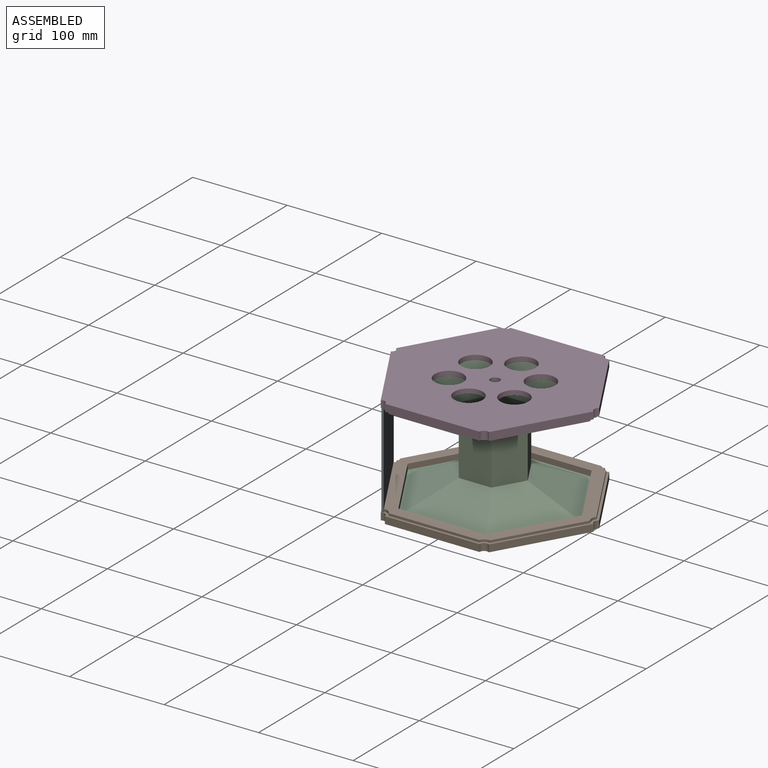
[diagram: assembled view]
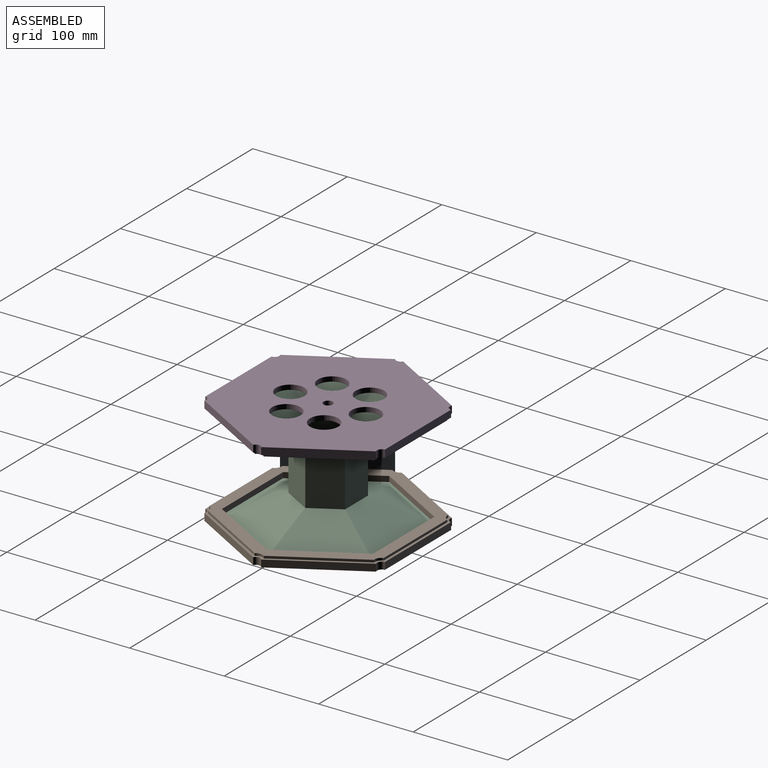
[diagram: assembled view, second angle]
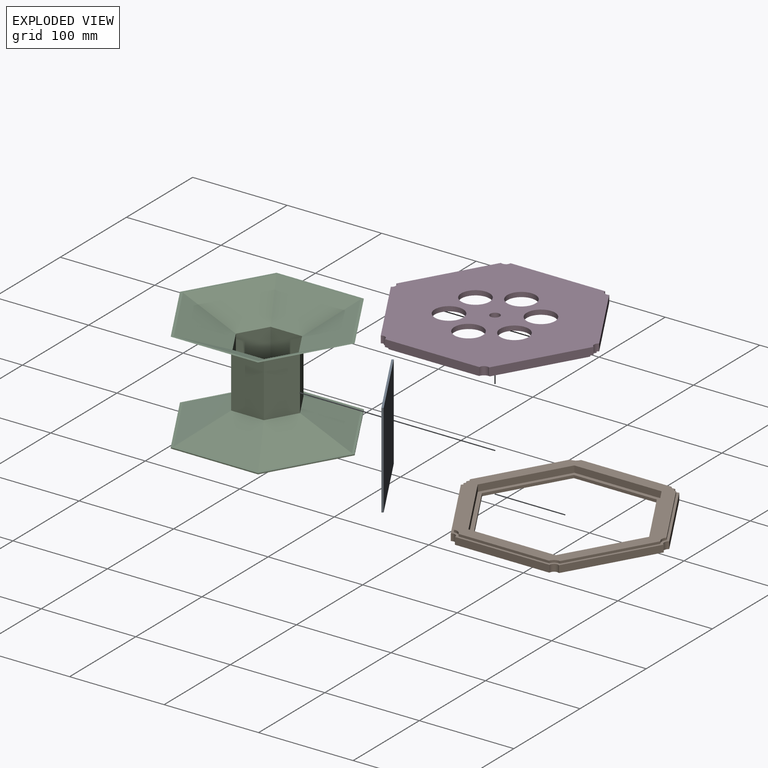
[diagram: exploded view]
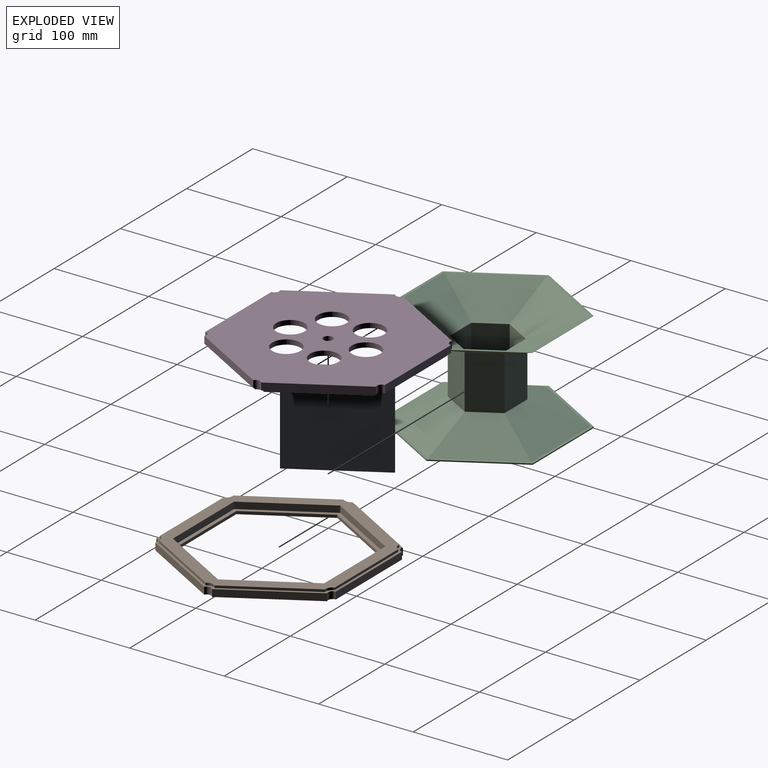
[diagram: exploded view, second angle]
ASSEMBLY  parts=4 mates=3
PART A: 6 faces, bbox 100x100x2 mm
  f0: plane 100x2mm, normal (1,0,0), area 200mm2, adj f1,f3,f4,f5
  f1: plane 100x2mm, normal (0,1,0), area 200mm2, adj f0,f2,f4,f5
  f2: plane 100x2mm, normal (-1,0,0), area 200mm2, adj f1,f3,f4,f5
  f3: plane 100x2mm, normal (0,-1,0), area 200mm2, adj f0,f2,f4,f5
  f4: plane 100x100mm, normal (0,0,1), area 10000mm2, adj f0,f1,f2,f3
  f5: plane 100x100mm, normal (0,0,-1), area 10000mm2, adj f0,f1,f2,f3
PART B: 40 faces, bbox 214.6x190x10 mm
  f0: plane 100.1x7.5mm, normal (0,1,0), area 750.7mm2, adj f6,f7,f19,f32
  f1: plane 86.69x50.05mm, normal (-0.87,0.5,0), area 750.7mm2, adj f7,f8,f19,f32
  f2: plane 86.69x50.05mm, normal (-0.87,-0.5,0), area 750.7mm2, adj f8,f9,f19,f32
  f3: plane 100.1x7.5mm, normal (0,-1,0), area 750.7mm2, adj f9,f10,f19,f32
  f4: plane 86.69x50.05mm, normal (0.87,-0.5,0), area 750.7mm2, adj f10,f11,f19,f32
  f5: plane 86.69x50.05mm, normal (0.87,0.5,0), area 750.7mm2, adj f6,f11,f19,f32
  f6: cylinder r=4.8mm len=7.5mm, axis (0,0,-1), area 75.4mm2, adj f0,f5,f19,f32
  f7: cylinder r=4.8mm len=7.5mm, axis (0,0,-1), area 75.4mm2, adj f0,f1,f19,f32
  f8: cylinder r=4.8mm len=8.32mm, axis (0,0,-1), area 75.4mm2, adj f1,f2,f19,f32
  f9: cylinder r=4.8mm len=7.5mm, axis (0,0,-1), area 75.4mm2, adj f2,f3,f19,f32
  f10: cylinder r=4.8mm len=7.5mm, axis (0,0,-1), area 75.4mm2, adj f3,f4,f19,f32
  f11: cylinder r=4.8mm len=8.32mm, axis (0,0,-1), area 75.4mm2, adj f4,f5,f19,f32
  f12: plane 92.38x7mm, normal (0,-1,0), area 646.6mm2, adj f13,f17,f18,f39
  f13: plane 80x46.19mm, normal (-0.87,-0.5,0), area 646.6mm2, adj f12,f14,f18,f39
  f14: plane 80x46.19mm, normal (-0.87,0.5,0), area 646.6mm2, adj f13,f15,f18,f39
  f15: plane 92.38x7mm, normal (0,1,0), area 646.6mm2, adj f14,f16,f18,f39
  f16: plane 80x46.19mm, normal (0.87,0.5,0), area 646.6mm2, adj f15,f17,f18,f39
  f17: plane 80x46.19mm, normal (0.87,-0.5,0), area 646.6mm2, adj f12,f16,f18,f39
  f18: plane 208.2x185mm, normal (0,0,1), area 7327.6mm2, adj f12,f13,f14,f15,f16,f17,f20,f21
  f19: plane 214.59x190mm, normal (0,0,-1), area 11110.1mm2, adj f0,f1,f2,f3,f4,f5,f6,f7
  f20: plane 83.12x47.99mm, normal (0.87,0.5,0), area 239.9mm2, adj f18,f21,f31,f32
  f21: cylinder r=7.3mm len=9.38mm, axis (0,0,1), area 25.5mm2, adj f18,f20,f22,f32
  f22: plane 83.12x47.99mm, normal (0.87,-0.5,0), area 239.9mm2, adj f18,f21,f23,f32
  f23: cylinder r=7.3mm len=8.12mm, axis (0,0,1), area 25.5mm2, adj f18,f22,f24,f32
  f24: plane 95.98x2.5mm, normal (0,-1,0), area 239.9mm2, adj f18,f23,f25,f32
  f25: cylinder r=7.3mm len=8.12mm, axis (0,0,1), area 25.5mm2, adj f18,f24,f26,f32
  f26: plane 83.12x47.99mm, normal (-0.87,-0.5,0), area 239.9mm2, adj f18,f25,f27,f32
  f27: cylinder r=7.3mm len=9.38mm, axis (0,0,1), area 25.5mm2, adj f18,f26,f28,f32
  f28: plane 83.12x47.99mm, normal (-0.87,0.5,0), area 239.9mm2, adj f18,f27,f29,f32
  f29: cylinder r=7.3mm len=8.12mm, axis (0,0,1), area 25.5mm2, adj f18,f28,f30,f32
  f30: plane 95.98x2.5mm, normal (0,1,0), area 239.9mm2, adj f18,f29,f31,f32
  f31: cylinder r=7.3mm len=8.12mm, axis (0,0,1), area 25.5mm2, adj f18,f20,f30,f32
  f32: plane 214.59x190mm, normal (0,0,1), area 1620.9mm2, adj f0,f1,f2,f3,f4,f5,f6,f7
  f33: plane 76x43.88mm, normal (0.87,-0.5,0), area 263.3mm2, adj f19,f34,f38,f39
  f34: plane 87.76x3mm, normal (0,-1,0), area 263.3mm2, adj f19,f33,f35,f39
  f35: plane 76x43.88mm, normal (-0.87,-0.5,0), area 263.3mm2, adj f19,f34,f36,f39
  f36: plane 76x43.88mm, normal (-0.87,0.5,0), area 263.3mm2, adj f19,f35,f37,f39
  f37: plane 87.76x3mm, normal (0,1,0), area 263.3mm2, adj f19,f36,f38,f39
  f38: plane 76x43.88mm, normal (0.87,0.5,0), area 263.3mm2, adj f19,f33,f37,f39
  f39: plane 184.75x160mm, normal (0,0,1), area 2161.6mm2, adj f12,f13,f14,f15,f16,f17,f33,f34
PART C: 46 faces, bbox 184.8x160x107 mm
  f0: plane 184.75x160mm, normal (0,0,1), area 1462.3mm2, adj f1,f2,f3,f4,f5,f6,f19,f20
  f1: plane 92.38x50mm, normal (0,0.45,-0.89), area 3550.2mm2, adj f0,f2,f6,f13
  f2: plane 80x75.06mm, normal (0.39,0.22,-0.89), area 3550.2mm2, adj f0,f1,f3,f18
  f3: plane 80x75.06mm, normal (0.39,-0.22,-0.89), area 3550.2mm2, adj f0,f2,f4,f17
  f4: plane 92.38x50mm, normal (0,-0.45,-0.89), area 3550.2mm2, adj f0,f3,f5,f16
  f5: plane 80x75.06mm, normal (-0.39,-0.22,-0.89), area 3550.2mm2, adj f0,f4,f6,f15
  f6: plane 80x75.06mm, normal (-0.39,0.22,-0.89), area 3550.2mm2, adj f0,f1,f5,f14
  f7: plane 77.6x72.28mm, normal (-0.39,0.22,0.89), area 3306.1mm2, adj f8,f12,f14,f38
  f8: plane 77.6x72.28mm, normal (-0.39,-0.22,0.89), area 3306.1mm2, adj f7,f9,f15,f38
  f9: plane 89.6x47.6mm, normal (0,-0.45,0.89), area 3306.1mm2, adj f8,f10,f16,f38
  f10: plane 77.6x72.28mm, normal (0.39,-0.22,0.89), area 3306.1mm2, adj f9,f11,f17,f38
  f11: plane 77.6x72.28mm, normal (0.39,0.22,0.89), area 3306.1mm2, adj f10,f12,f18,f38
  f12: plane 89.6x47.6mm, normal (0,0.45,0.89), area 3306.1mm2, adj f7,f11,f13,f38
  f13: plane 57x34.64mm, normal (0,1,0), area 1974.5mm2, adj f1,f12,f14,f18
  f14: plane 57x30mm, normal (-0.87,0.5,0), area 1974.5mm2, adj f6,f7,f13,f15
  f15: plane 57x30mm, normal (-0.87,-0.5,0), area 1974.5mm2, adj f5,f8,f14,f16
  f16: plane 57x34.64mm, normal (0,-1,0), area 1974.5mm2, adj f4,f9,f15,f17
  f17: plane 57x30mm, normal (0.87,-0.5,0), area 1974.5mm2, adj f3,f10,f16,f18
  f18: plane 57x30mm, normal (0.87,0.5,0), area 1974.5mm2, adj f2,f11,f13,f17
  f19: plane 89.28x48.52mm, normal (0,-0.45,0.89), area 3323.3mm2, adj f0,f20,f24,f31
  f20: plane 77.32x72.65mm, normal (-0.39,-0.22,0.89), area 3323.3mm2, adj f0,f19,f21,f36
  f21: plane 77.32x72.65mm, normal (-0.39,0.22,0.89), area 3323.3mm2, adj f0,f20,f22,f35
  f22: plane 89.28x48.52mm, normal (0,0.45,0.89), area 3323.3mm2, adj f0,f21,f23,f34
  f23: plane 77.32x72.65mm, normal (0.39,0.22,0.89), area 3323.3mm2, adj f0,f22,f24,f33
  f24: plane 77.32x72.65mm, normal (0.39,-0.22,0.89), area 3323.3mm2, adj f0,f19,f23,f32
  f25: plane 74.92x69.88mm, normal (0.39,-0.22,-0.89), area 3087.5mm2, adj f26,f30,f32,f37
  f26: plane 74.92x69.88mm, normal (0.39,0.22,-0.89), area 3087.5mm2, adj f25,f27,f33,f37
  f27: plane 86.51x46.12mm, normal (0,0.45,-0.89), area 3087.5mm2, adj f26,f28,f34,f37
  f28: plane 74.92x69.88mm, normal (-0.39,0.22,-0.89), area 3087.5mm2, adj f27,f29,f35,f37
  f29: plane 74.92x69.88mm, normal (-0.39,-0.22,-0.89), area 3087.5mm2, adj f28,f30,f36,f37
  f30: plane 86.51x46.12mm, normal (0,-0.45,-0.89), area 3087.5mm2, adj f25,f29,f31,f37
  f31: plane 58.48x33.26mm, normal (0,-1,0), area 1944.9mm2, adj f19,f30,f32,f36
  f32: plane 58.48x28.8mm, normal (0.87,-0.5,0), area 1944.9mm2, adj f24,f25,f31,f33
  f33: plane 58.48x28.8mm, normal (0.87,0.5,0), area 1944.9mm2, adj f23,f26,f32,f34
  f34: plane 58.48x33.26mm, normal (0,1,0), area 1944.9mm2, adj f22,f27,f33,f35
  f35: plane 58.48x28.8mm, normal (-0.87,0.5,0), area 1944.9mm2, adj f21,f28,f34,f36
  f36: plane 58.48x28.8mm, normal (-0.87,-0.5,0), area 1944.9mm2, adj f20,f29,f31,f35
  f37: plane 173.01x149.83mm, normal (0,0,1), area 19442.3mm2, adj f25,f26,f27,f28,f29,f30
  f38: plane 184.75x160mm, normal (0,0,1), area 1310.3mm2, adj f7,f8,f9,f10,f11,f12,f39,f40
  f39: plane 80x46.19mm, normal (0.87,0.5,0), area 110.9mm2, adj f38,f40,f44,f45
  f40: plane 80x46.19mm, normal (0.87,-0.5,0), area 110.9mm2, adj f38,f39,f41,f45
  f41: plane 92.38x1.2mm, normal (0,-1,0), area 110.9mm2, adj f38,f40,f42,f45
  f42: plane 80x46.19mm, normal (-0.87,-0.5,0), area 110.9mm2, adj f38,f41,f43,f45
  f43: plane 80x46.19mm, normal (-0.87,0.5,0), area 110.9mm2, adj f38,f42,f44,f45
  f44: plane 92.38x1.2mm, normal (0,1,0), area 110.9mm2, adj f38,f39,f43,f45
  f45: plane 184.75x160mm, normal (0,0,-1), area 22170.3mm2, adj f39,f40,f41,f42,f43,f44
PART D: 41 faces, bbox 214.6x190x10 mm
  f0: plane 100.1x7.5mm, normal (0,1,0), area 750.7mm2, adj f6,f7,f31,f33
  f1: plane 86.69x50.05mm, normal (-0.87,0.5,0), area 750.7mm2, adj f7,f8,f31,f33
  f2: plane 86.69x50.05mm, normal (-0.87,-0.5,0), area 750.7mm2, adj f8,f9,f31,f33
  f3: plane 100.1x7.5mm, normal (0,-1,0), area 750.7mm2, adj f9,f10,f31,f33
  f4: plane 86.69x50.05mm, normal (0.87,-0.5,0), area 750.7mm2, adj f10,f11,f31,f33
  f5: plane 86.69x50.05mm, normal (0.87,0.5,0), area 750.7mm2, adj f6,f11,f31,f33
  f6: cylinder r=4.8mm len=7.5mm, axis (0,0,-1), area 75.4mm2, adj f0,f5,f31,f33
  f7: cylinder r=4.8mm len=7.5mm, axis (0,0,-1), area 75.4mm2, adj f0,f1,f31,f33
  f8: cylinder r=4.8mm len=8.32mm, axis (0,0,-1), area 75.4mm2, adj f1,f2,f31,f33
  f9: cylinder r=4.8mm len=7.5mm, axis (0,0,-1), area 75.4mm2, adj f2,f3,f31,f33
  f10: cylinder r=4.8mm len=7.5mm, axis (0,0,-1), area 75.4mm2, adj f3,f4,f31,f33
  f11: cylinder r=4.8mm len=8.32mm, axis (0,0,-1), area 75.4mm2, adj f4,f5,f31,f33
  f12: plane 92.95x5mm, normal (0,-1,0), area 464.8mm2, adj f13,f17,f18,f32
  f13: plane 80.5x46.48mm, normal (-0.87,-0.5,0), area 464.8mm2, adj f12,f14,f18,f32
  f14: plane 80.5x46.48mm, normal (-0.87,0.5,0), area 464.8mm2, adj f13,f15,f18,f32
  f15: plane 92.95x5mm, normal (0,1,0), area 464.8mm2, adj f14,f16,f18,f32
  f16: plane 80.5x46.48mm, normal (0.87,0.5,0), area 464.8mm2, adj f15,f17,f18,f32
  f17: plane 80.5x46.48mm, normal (0.87,-0.5,0), area 464.8mm2, adj f12,f16,f18,f32
  f18: plane 208.2x185mm, normal (0,0,1), area 7049.6mm2, adj f12,f13,f14,f15,f16,f17,f19,f20
  f19: plane 83.12x47.99mm, normal (0.87,0.5,0), area 239.9mm2, adj f18,f20,f30,f31
  f20: cylinder r=7.3mm len=9.38mm, axis (0,0,1), area 25.5mm2, adj f18,f19,f21,f31
  f21: plane 83.12x47.99mm, normal (0.87,-0.5,0), area 239.9mm2, adj f18,f20,f22,f31
  f22: cylinder r=7.3mm len=8.12mm, axis (0,0,1), area 25.5mm2, adj f18,f21,f23,f31
  f23: plane 95.98x2.5mm, normal (0,-1,0), area 239.9mm2, adj f18,f22,f24,f31
  f24: cylinder r=7.3mm len=8.12mm, axis (0,0,1), area 25.5mm2, adj f18,f23,f25,f31
  f25: plane 83.12x47.99mm, normal (-0.87,-0.5,0), area 239.9mm2, adj f18,f24,f26,f31
  f26: cylinder r=7.3mm len=9.38mm, axis (0,0,1), area 25.5mm2, adj f18,f25,f27,f31
  f27: plane 83.12x47.99mm, normal (-0.87,0.5,0), area 239.9mm2, adj f18,f26,f28,f31
  f28: cylinder r=7.3mm len=8.12mm, axis (0,0,1), area 25.5mm2, adj f18,f27,f29,f31
  f29: plane 95.98x2.5mm, normal (0,1,0), area 239.9mm2, adj f18,f28,f30,f31
  f30: cylinder r=7.3mm len=8.12mm, axis (0,0,1), area 25.5mm2, adj f18,f19,f29,f31
  f31: plane 214.59x190mm, normal (0,0,1), area 1620.9mm2, adj f0,f1,f2,f3,f4,f5,f6,f7
  f32: plane 185.91x161mm, normal (0,0,1), area 18128.6mm2, adj f12,f13,f14,f15,f16,f17,f34,f35
  f33: plane 214.59x190mm, normal (0,0,-1), area 26799mm2, adj f0,f1,f2,f3,f4,f5,f6,f7
  f34: cylinder r=5mm len=10mm, axis (0,0,1), area 157.1mm2, adj f32,f33
  f35: cylinder r=15mm len=30mm, axis (0,0,1), area 471.2mm2, adj f32,f33
  f36: cylinder r=15mm len=30mm, axis (0,0,1), area 471.2mm2, adj f32,f33
  f37: cylinder r=15mm len=30mm, axis (0,0,1), area 471.2mm2, adj f32,f33
  f38: cylinder r=15mm len=30mm, axis (0,0,1), area 471.2mm2, adj f32,f33
  f39: cylinder r=15mm len=30mm, axis (0,0,1), area 471.2mm2, adj f32,f33
  f40: cylinder r=15mm len=30mm, axis (0,0,1), area 471.2mm2, adj f32,f33
PLACE A rot(axis=(-0.69,-0.19,-0.69),158.9deg) t=(-81.84,-47.25,57.5)mm
PLACE B at identity fixed
PLACE C t=(0,0,3)mm
PLACE D rot(axis=(1,0,0),180deg) t=(0,0,110)mm
MATE planar B.f39 <-> C.f45  axis (0,0,1) through (0,0,3)mm
MATE parallel B.f26 <-> A.f4  axis (-0.87,-0.5,0) through (-80.11,-46.25,8.75)mm
MATE planar B.f32 <-> A.f2  axis (0,0,1) through (-82.27,-47.5,7.5)mm
